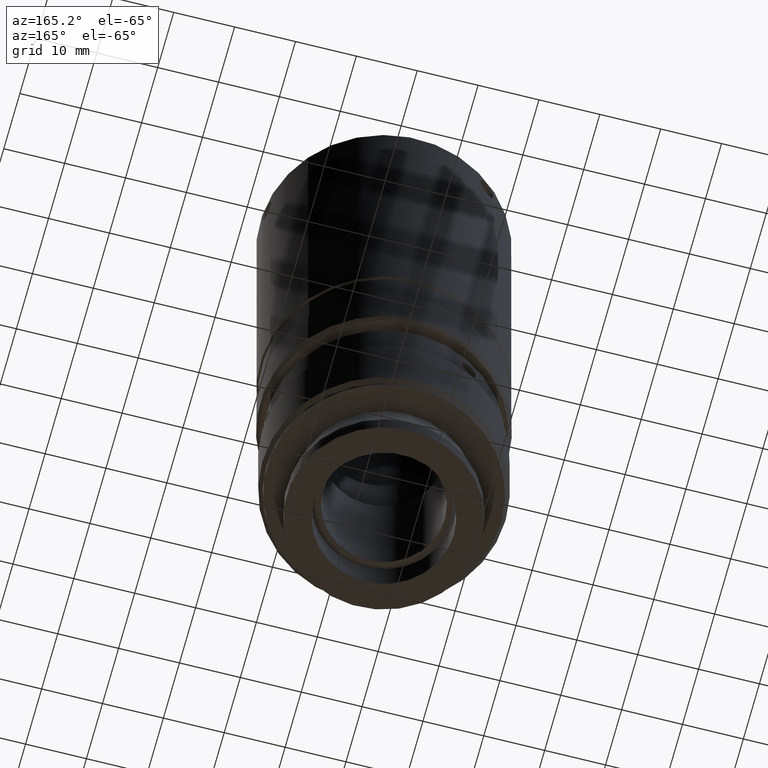
[diagram: clean part render]
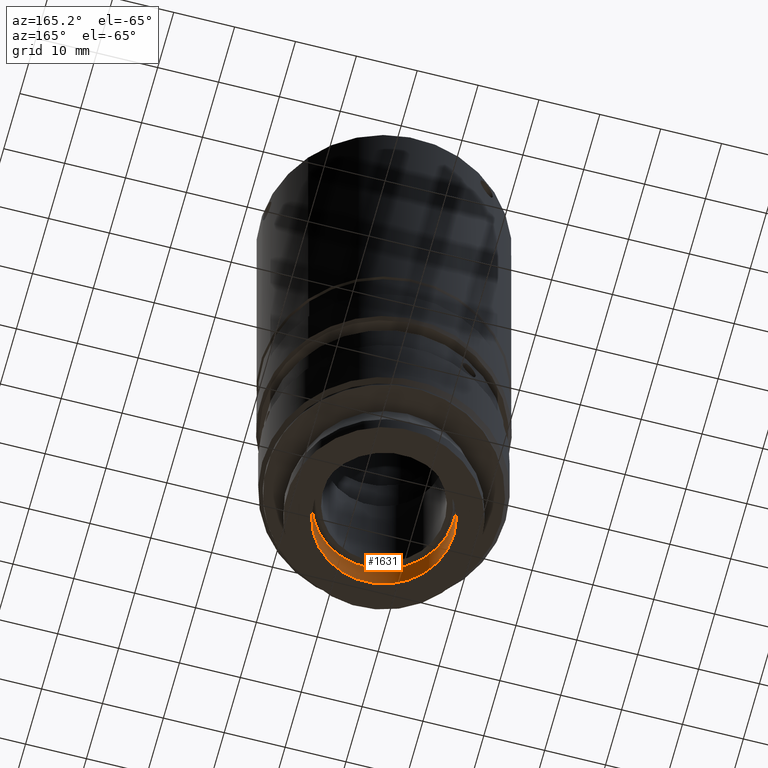
[diagram: same view with one face highlighted and labeled with its STEP entity id]
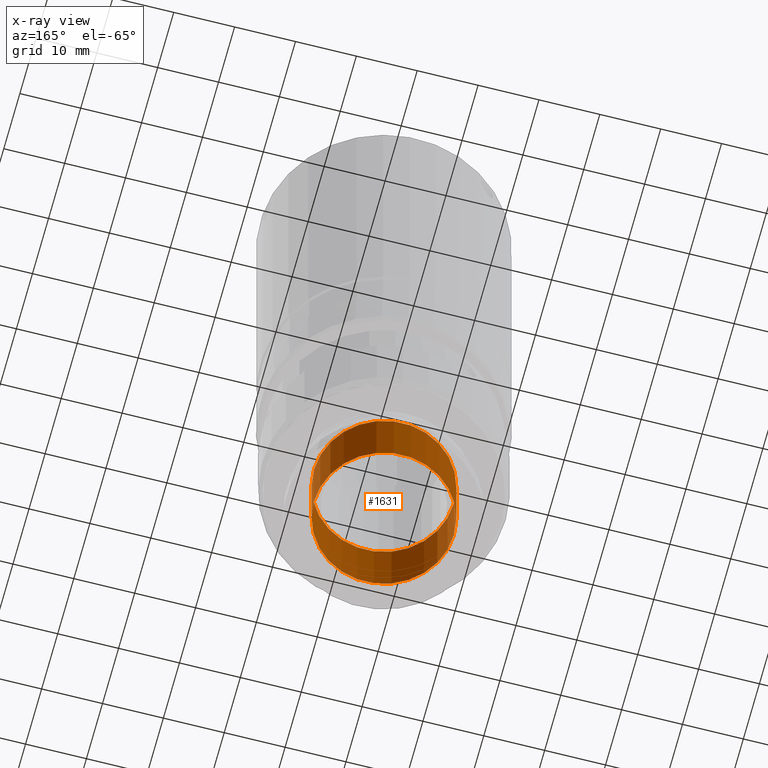
[diagram: x-ray of the same camera — body ghosted, the highlighted face saturated]
A machine part, auxiliary view. The second image highlights one B-rep face of the part: STEP entity #1631.
The next image is the same camera in x-ray: the body ghosted, the highlighted face saturated — about 0% of this face is hidden behind the body in this view.
In plain terms, the highlighted cylindrical surface (bore or boss wall) has radius 11.5 mm, axis along (-0, -0, 1).
Its self-contained STEP definition (entity closure, byte-faithful):
#9 = DIRECTION ( 'NONE',  ( -0.000000000000000000, -0.000000000000000000, 1.000000000000000000 ) ) ;
#145 = DIRECTION ( 'NONE',  ( 1.000000000000000000, 0.000000000000000000, 0.000000000000000000 ) ) ;
#360 = DIRECTION ( 'NONE',  ( 1.000000000000000000, 0.000000000000000000, 0.000000000000000000 ) ) ;
#370 = FACE_OUTER_BOUND ( 'NONE', #1102, .T. ) ;
#389 = AXIS2_PLACEMENT_3D ( 'NONE', #793, #9, #145 ) ;
#476 = FACE_OUTER_BOUND ( 'NONE', #551, .T. ) ;
#493 = DIRECTION ( 'NONE',  ( -0.000000000000000000, -0.000000000000000000, 1.000000000000000000 ) ) ;
#529 = ORIENTED_EDGE ( 'NONE', *, *, #823, .T. ) ;
#551 = EDGE_LOOP ( 'NONE', ( #529 ) ) ;
#640 = VERTEX_POINT ( 'NONE', #1552 ) ;
#661 = CARTESIAN_POINT ( 'NONE',  ( 6.363686856569329642, 2.012163911859719434, 36.99999835372158685 ) ) ;
#695 = CIRCLE ( 'NONE', #1655, 11.50000000000000000 ) ;
#771 = EDGE_CURVE ( 'NONE', #640, #640, #1121, .T. ) ;
#777 = DIRECTION ( 'NONE',  ( -0.000000000000000000, -0.000000000000000000, 1.000000000000000000 ) ) ;
#793 = CARTESIAN_POINT ( 'NONE',  ( -5.136313143430670358, 2.012163911859719434, 24.99999835367975365 ) ) ;
#823 = EDGE_CURVE ( 'NONE', #1285, #1285, #695, .T. ) ;
#1102 = EDGE_LOOP ( 'NONE', ( #1516 ) ) ;
#1121 = CIRCLE ( 'NONE', #389, 11.50000000000000000 ) ;
#1194 = DIRECTION ( 'NONE',  ( 1.000000000000000000, 0.000000000000000000, 0.000000000000000000 ) ) ;
#1285 = VERTEX_POINT ( 'NONE', #661 ) ;
#1303 = CARTESIAN_POINT ( 'NONE',  ( -5.136313143430670358, 2.012163911859719434, 54.99999835372159396 ) ) ;
#1323 = AXIS2_PLACEMENT_3D ( 'NONE', #1303, #493, #360 ) ;
#1516 = ORIENTED_EDGE ( 'NONE', *, *, #771, .F. ) ;
#1519 = CYLINDRICAL_SURFACE ( 'NONE', #1323, 11.50000000000000000 ) ;
#1552 = CARTESIAN_POINT ( 'NONE',  ( 6.363686856569329642, 2.012163911859719434, 24.99999835367975365 ) ) ;
#1606 = CARTESIAN_POINT ( 'NONE',  ( -5.136313143430670358, 2.012163911859719434, 36.99999835372158685 ) ) ;
#1631 = ADVANCED_FACE ( 'NONE', ( #370, #476 ), #1519, .F. ) ;
#1655 = AXIS2_PLACEMENT_3D ( 'NONE', #1606, #777, #1194 ) ;